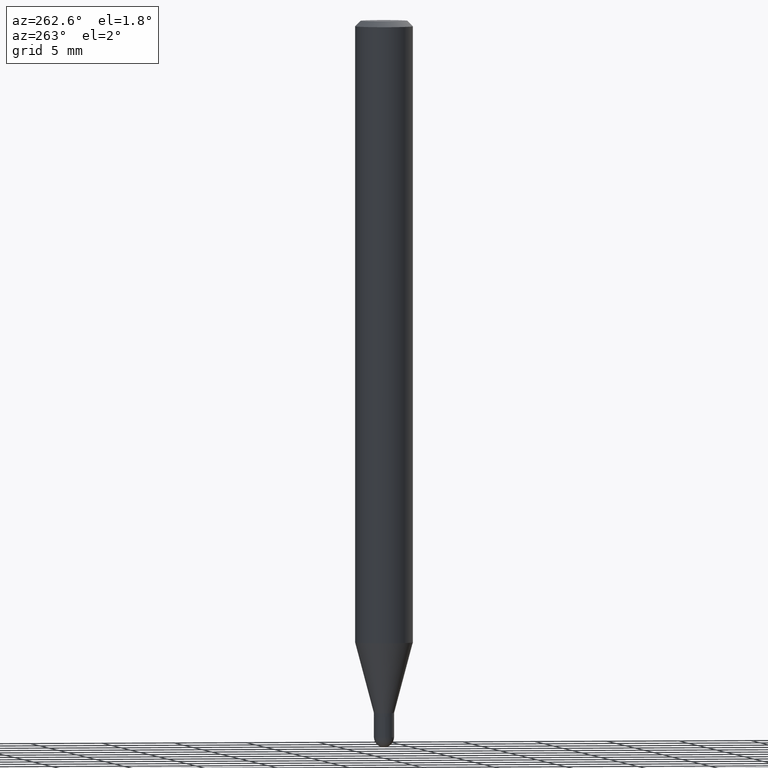
[diagram: clean part render]
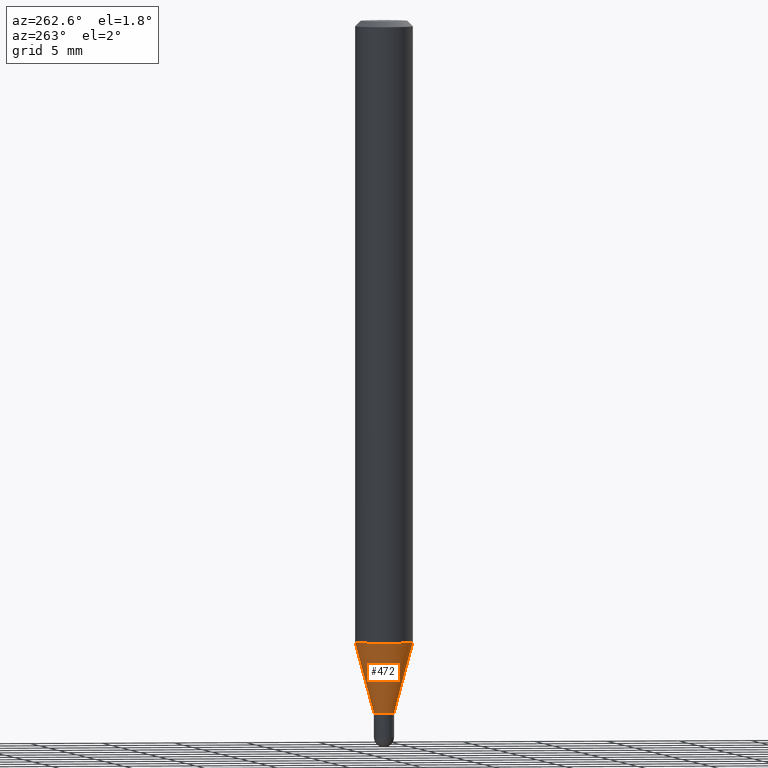
[diagram: same view with one face highlighted and labeled with its STEP entity id]
A machine part, auxiliary view. The second image highlights one B-rep face of the part: STEP entity #472.
In plain terms, the highlighted conical surface has half-angle 15 deg.
Its self-contained STEP definition (entity closure, byte-faithful):
#5 = ORIENTED_EDGE ( 'NONE', *, *, #356, .F. ) ;
#10 = ORIENTED_EDGE ( 'NONE', *, *, #80, .T. ) ;
#16 = CARTESIAN_POINT ( 'NONE',  ( 3.776534640565365081E-16, 0.02754999999999337840, -1.875499999999999945 ) ) ;
#24 = CARTESIAN_POINT ( 'NONE',  ( -1.923806217702102502E-16, -0.02755000000000647556, -1.875499999999999945 ) ) ;
#27 = AXIS2_PLACEMENT_3D ( 'NONE', #473, #81, #358 ) ;
#67 = DIRECTION ( 'NONE',  ( -2.445423250412128530E-29, 3.491546577302966933E-15, 1.000000000000000000 ) ) ;
#69 = VERTEX_POINT ( 'NONE', #258 ) ;
#80 = EDGE_CURVE ( 'NONE', #174, #69, #150, .T. ) ;
#81 = DIRECTION ( 'NONE',  ( -2.445423250412128530E-29, 3.491546577302966933E-15, 1.000000000000000000 ) ) ;
#102 = CONICAL_SURFACE ( 'NONE', #305, 0.02754999999999992524, 0.2617993877991505181 ) ;
#150 = CIRCLE ( 'NONE', #370, 0.02754999999999992524 ) ;
#170 = VERTEX_POINT ( 'NONE', #300 ) ;
#174 = VERTEX_POINT ( 'NONE', #16 ) ;
#189 = LINE ( 'NONE', #24, #223 ) ;
#191 = DIRECTION ( 'NONE',  ( -1.807323732225331717E-15, -0.2588190451025184080, 0.9659258262890689783 ) ) ;
#193 = CARTESIAN_POINT ( 'NONE',  ( 5.595524044111199211E-16, 0.07874999999999410250, -1.684418998652474242 ) ) ;
#199 = ORIENTED_EDGE ( 'NONE', *, *, #417, .F. ) ;
#201 = CIRCLE ( 'NONE', #27, 0.07875000000000000056 ) ;
#220 = CARTESIAN_POINT ( 'NONE',  ( 4.586391306147947121E-29, -6.548395605731713920E-15, -1.875499999999999945 ) ) ;
#223 = VECTOR ( 'NONE', #191, 39.37007874015748854 ) ;
#244 = DIRECTION ( 'NONE',  ( -6.982962677686265922E-15, -1.000000000000000000, 0.000000000000000000 ) ) ;
#258 = CARTESIAN_POINT ( 'NONE',  ( -1.923806217702102502E-16, -0.02755000000000647556, -1.875499999999999945 ) ) ;
#259 = VERTEX_POINT ( 'NONE', #193 ) ;
#271 = CARTESIAN_POINT ( 'NONE',  ( 4.586391306147947121E-29, -6.548395605731713920E-15, -1.875499999999999945 ) ) ;
#280 = DIRECTION ( 'NONE',  ( -2.445423250412128530E-29, 3.491546577302966933E-15, 1.000000000000000000 ) ) ;
#299 = ORIENTED_EDGE ( 'NONE', *, *, #330, .T. ) ;
#300 = CARTESIAN_POINT ( 'NONE',  ( -5.499083108677525221E-16, -0.07875000000000589861, -1.684418998652473798 ) ) ;
#305 = AXIS2_PLACEMENT_3D ( 'NONE', #271, #280, #244 ) ;
#330 = EDGE_CURVE ( 'NONE', #69, #170, #189, .T. ) ;
#356 = EDGE_CURVE ( 'NONE', #174, #259, #501, .T. ) ;
#358 = DIRECTION ( 'NONE',  ( -6.982962677686264344E-15, -1.000000000000000000, 3.469013325287953293E-15 ) ) ;
#364 = EDGE_LOOP ( 'NONE', ( #5, #10, #299, #199 ) ) ;
#370 = AXIS2_PLACEMENT_3D ( 'NONE', #220, #67, #392 ) ;
#376 = FACE_OUTER_BOUND ( 'NONE', #364, .T. ) ;
#387 = CARTESIAN_POINT ( 'NONE',  ( 1.957545237019528979E-16, 0.02754999999999337840, -1.875499999999999945 ) ) ;
#392 = DIRECTION ( 'NONE',  ( -6.982962677686265922E-15, -1.000000000000000000, 0.000000000000000000 ) ) ;
#417 = EDGE_CURVE ( 'NONE', #259, #170, #201, .T. ) ;
#458 = VECTOR ( 'NONE', #502, 39.37007874015748854 ) ;
#472 = ADVANCED_FACE ( 'NONE', ( #376 ), #102, .T. ) ;
#473 = CARTESIAN_POINT ( 'NONE',  ( 4.119117382740675669E-29, -5.881227389489135250E-15, -1.684418998652474020 ) ) ;
#501 = LINE ( 'NONE', #387, #458 ) ;
#502 = DIRECTION ( 'NONE',  ( 1.839019923739601893E-15, 0.2588190451025252359, 0.9659258262890670910 ) ) ;